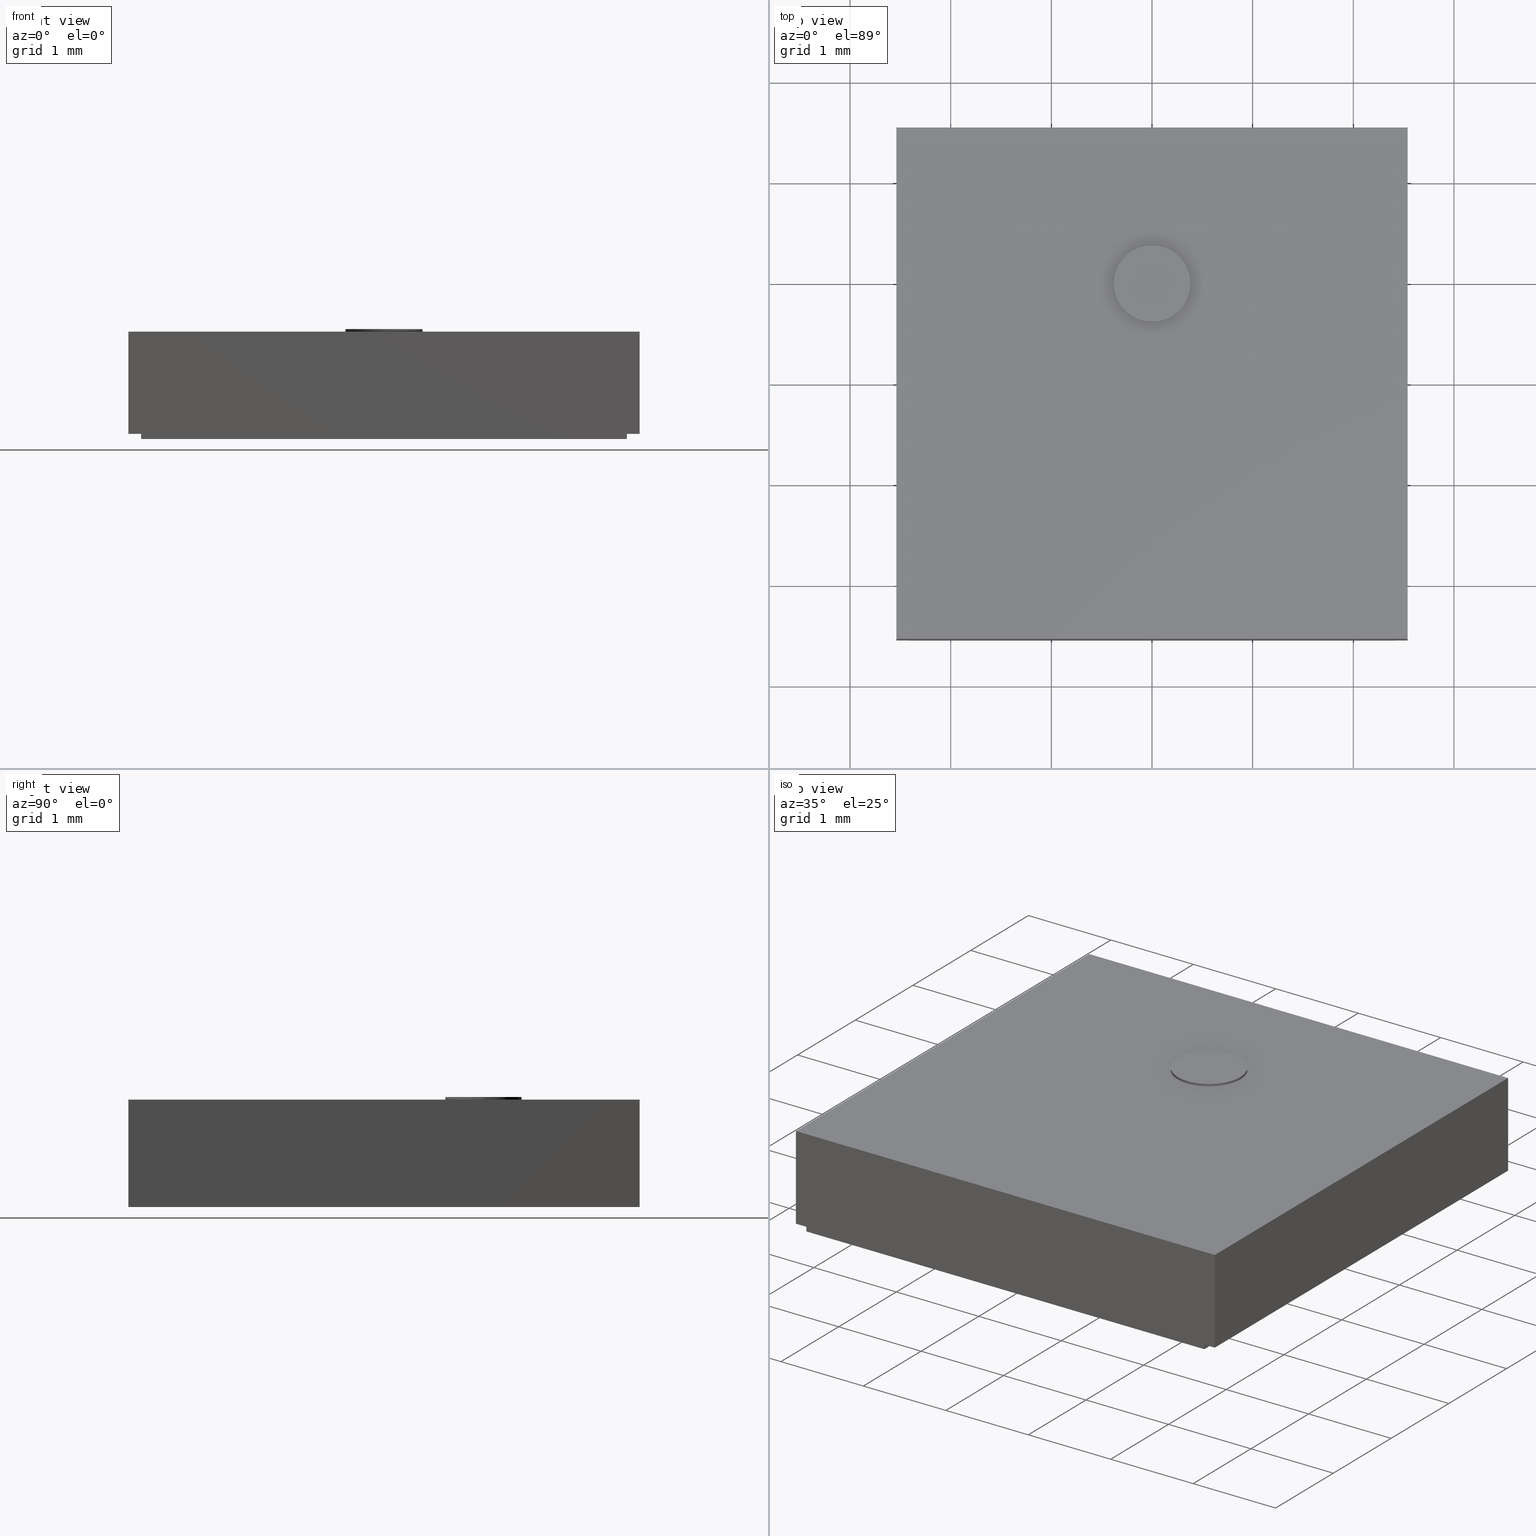
[diagram: canonical four-view strip — front | top / right | iso, engineering-drawing reading convention]
A machine part, canonical four-view strip (front | top / right | iso — engineering-drawing reading convention). The complete STEP part file that produces these views, byte-faithful:
ISO-10303-21;
HEADER;
FILE_DESCRIPTION (( 'STEP AP203' ),
    '1' );
FILE_NAME ('C100N50Z4.STEP',
    '2025-04-22T14:02:22',
    ( '' ),
    ( '' ),
    'SwSTEP 2.0',
    'SolidWorks 2023',
    '' );
FILE_SCHEMA (( 'CONFIG_CONTROL_DESIGN' ));
ENDSEC;

DATA;
#1 = ORIENTED_EDGE ( 'NONE', *, *, #312, .F. ) ;
#2 = LINE ( 'NONE', #747, #679 ) ;
#3 =( NAMED_UNIT ( * ) PLANE_ANGLE_UNIT ( ) SI_UNIT ( $, .RADIAN. ) );
#4 = CARTESIAN_POINT ( 'NONE',  ( 0.02500000000001989867, 0.1000000061611885371, 0.000000000000000000 ) ) ;
#5 = VERTEX_POINT ( 'NONE', #238 ) ;
#6 = DIRECTION ( 'NONE',  ( 0.000000000000000000, 0.000000000000000000, 1.000000000000000000 ) ) ;
#7 = EDGE_CURVE ( 'NONE', #69, #542, #310, .T. ) ;
#8 = PLANE ( 'NONE',  #370 ) ;
#9 = CARTESIAN_POINT ( 'NONE',  ( 0.000000000000000000, -0.1000000000000014211, 0.002000000000000000042 ) ) ;
#10 = ORIENTED_EDGE ( 'NONE', *, *, #77, .T. ) ;
#11 = DIRECTION ( 'NONE',  ( -0.000000000000000000, -0.000000000000000000, -1.000000000000000000 ) ) ;
#12 = CARTESIAN_POINT ( 'NONE',  ( -0.09999999999999430178, 0.1000000000000014211, 0.04099999999999999478 ) ) ;
#13 = ORIENTED_EDGE ( 'NONE', *, *, #715, .F. ) ;
#14 = CARTESIAN_POINT ( 'NONE',  ( -0.02499999999999147349, 0.09999999383881073844, 0.002000000000000000042 ) ) ;
#15 = CC_DESIGN_PERSON_AND_ORGANIZATION_ASSIGNMENT ( #662, #300, ( #425 ) ) ;
#16 = LINE ( 'NONE', #206, #704 ) ;
#17 = EDGE_CURVE ( 'NONE', #477, #714, #364, .T. ) ;
#18 = EDGE_LOOP ( 'NONE', ( #218, #544, #453, #378 ) ) ;
#19 = CARTESIAN_POINT ( 'NONE',  ( 0.02500000000001989867, 0.1000000061611885371, 0.002000000000000000042 ) ) ;
#20 = CARTESIAN_POINT ( 'NONE',  ( 0.09499999999999889089, 0.09874999999997412237, 0.002000000000000000042 ) ) ;
#21 = LINE ( 'NONE', #687, #104 ) ;
#22 = VECTOR ( 'NONE', #163, 39.37007874015748143 ) ;
#23 = FACE_OUTER_BOUND ( 'NONE', #575, .T. ) ;
#24 = LINE ( 'NONE', #14, #426 ) ;
#25 = AXIS2_PLACEMENT_3D ( 'NONE', #409, #647, #101 ) ;
#26 = CARTESIAN_POINT ( 'NONE',  ( -0.04499999999968905956, 0.05500000002084703965, 0.000000000000000000 ) ) ;
#27 = ADVANCED_FACE ( 'NONE', ( #482 ), #368, .F. ) ;
#28 = ORIENTED_EDGE ( 'NONE', *, *, #735, .F. ) ;
#29 = CARTESIAN_POINT ( 'NONE',  ( 0.02500000000001989867, 0.1000000061611885371, 0.000000000000000000 ) ) ;
#30 = PLANE ( 'NONE',  #62 ) ;
#31 = APPROVAL_STATUS ( 'not_yet_approved' ) ;
#32 = APPROVAL_PERSON_ORGANIZATION ( #116, #75, #418 ) ;
#33 = LINE ( 'NONE', #153, #751 ) ;
#34 = DIRECTION ( 'NONE',  ( -0.000000000000000000, -0.000000000000000000, -1.000000000000000000 ) ) ;
#35 = ORIENTED_EDGE ( 'NONE', *, *, #56, .T. ) ;
#36 = DIRECTION ( 'NONE',  ( -1.000000000000000000, 0.000000000000000000, 0.000000000000000000 ) ) ;
#37 = VECTOR ( 'NONE', #689, 39.37007874015748143 ) ;
#38 = VECTOR ( 'NONE', #143, 39.37007874015748143 ) ;
#39 = ADVANCED_FACE ( 'NONE', ( #726 ), #190, .F. ) ;
#40 = CARTESIAN_POINT ( 'NONE',  ( 2.842170943040400743E-13, 0.03889311473933076968, 0.04199999999999999567 ) ) ;
#41 = ORIENTED_EDGE ( 'NONE', *, *, #533, .T. ) ;
#42 = CARTESIAN_POINT ( 'NONE',  ( 0.04500000000031433717, 0.09874999999997413624, 0.002000000000000000042 ) ) ;
#43 = EDGE_LOOP ( 'NONE', ( #445, #503, #173, #541 ) ) ;
#44 = DIRECTION ( 'NONE',  ( -0.9999999999999524825, -3.080605995648821658E-07, 0.000000000000000000 ) ) ;
#45 = ORIENTED_EDGE ( 'NONE', *, *, #545, .F. ) ;
#46 = LINE ( 'NONE', #540, #260 ) ;
#47 = CC_DESIGN_PERSON_AND_ORGANIZATION_ASSIGNMENT ( #535, #242, ( #425 ) ) ;
#48 = CYLINDRICAL_SURFACE ( 'NONE', #712, 0.004999999999981952908 ) ;
#49 = ORIENTED_EDGE ( 'NONE', *, *, #327, .T. ) ;
#50 = EDGE_CURVE ( 'NONE', #154, #580, #598, .T. ) ;
#51 = VERTEX_POINT ( 'NONE', #786 ) ;
#52 = DIRECTION ( 'NONE',  ( -1.000000000000000000, 0.000000000000000000, 0.000000000000000000 ) ) ;
#53 = DATE_TIME_ROLE ( 'creation_date' ) ;
#54 = ORIENTED_EDGE ( 'NONE', *, *, #446, .F. ) ;
#55 = APPROVAL_PERSON_ORGANIZATION ( #144, #650, #339 ) ;
#56 = EDGE_CURVE ( 'NONE', #607, #537, #64, .T. ) ;
#57 = VECTOR ( 'NONE', #412, 39.37007874015748143 ) ;
#58 = PERSON_AND_ORGANIZATION_ROLE ( 'classification_officer' ) ;
#59 = CARTESIAN_POINT ( 'NONE',  ( 0.09499999999999889089, 0.09874999999997412237, 0.000000000000000000 ) ) ;
#60 = VECTOR ( 'NONE', #345, 39.37007874015748143 ) ;
#61 = LINE ( 'NONE', #587, #746 ) ;
#62 = AXIS2_PLACEMENT_3D ( 'NONE', #110, #430, #44 ) ;
#63 = ORIENTED_EDGE ( 'NONE', *, *, #533, .F. ) ;
#64 = LINE ( 'NONE', #308, #705 ) ;
#65 = DIRECTION ( 'NONE',  ( -0.000000000000000000, -0.000000000000000000, -1.000000000000000000 ) ) ;
#66 = ORIENTED_EDGE ( 'NONE', *, *, #692, .T. ) ;
#67 = EDGE_LOOP ( 'NONE', ( #313, #133, #676, #586 ) ) ;
#68 = EDGE_CURVE ( 'NONE', #322, #607, #2, .T. ) ;
#69 = VERTEX_POINT ( 'NONE', #331 ) ;
#70 = DIRECTION ( 'NONE',  ( -1.000000000000000000, 0.000000000000000000, 0.000000000000000000 ) ) ;
#71 = ORIENTED_EDGE ( 'NONE', *, *, #281, .T. ) ;
#72 = ORIENTED_EDGE ( 'NONE', *, *, #198, .F. ) ;
#73 = CARTESIAN_POINT ( 'NONE',  ( 2.842170943040400743E-13, 0.03889311473933076968, 0.04300000000000000350 ) ) ;
#74 = EDGE_LOOP ( 'NONE', ( #489, #413, #492, #72, #28, #632 ) ) ;
#75 = APPROVAL ( #785, 'UNSPECIFIED' ) ;
#76 = ORIENTED_EDGE ( 'NONE', *, *, #740, .F. ) ;
#77 = EDGE_CURVE ( 'NONE', #342, #154, #259, .T. ) ;
#78 = CARTESIAN_POINT ( 'NONE',  ( -0.02499999999999147696, 0.07999998769846426716, 0.002000000000000000042 ) ) ;
#79 = ORIENTED_EDGE ( 'NONE', *, *, #556, .T. ) ;
#80 = LINE ( 'NONE', #701, #563 ) ;
#81 = AXIS2_PLACEMENT_3D ( 'NONE', #501, #552, #326 ) ;
#82 = AXIS2_PLACEMENT_3D ( 'NONE', #447, #509, #753 ) ;
#83 = PLANE ( 'NONE',  #323 ) ;
#84 = DIRECTION ( 'NONE',  ( 0.9999999999999524825, 3.080605995648821658E-07, 0.000000000000000000 ) ) ;
#85 = VERTEX_POINT ( 'NONE', #214 ) ;
#86 = DIRECTION ( 'NONE',  ( -0.000000000000000000, -0.000000000000000000, -1.000000000000000000 ) ) ;
#87 = ADVANCED_FACE ( 'NONE', ( #462 ), #207, .T. ) ;
#88 = DIRECTION ( 'NONE',  ( -1.000000000000000000, 0.000000000000000000, 0.000000000000000000 ) ) ;
#89 = VECTOR ( 'NONE', #766, 39.37007874015748143 ) ;
#90 = CARTESIAN_POINT ( 'NONE',  ( -0.09499999999999886313, 0.09875000000001676881, 0.002000000000000000042 ) ) ;
#91 = EDGE_CURVE ( 'NONE', #183, #580, #392, .T. ) ;
#92 = DIRECTION ( 'NONE',  ( 1.000000000000000000, 0.000000000000000000, 0.000000000000000000 ) ) ;
#93 = CARTESIAN_POINT ( 'NONE',  ( 0.04500000000031433717, 0.09874999999997413624, 0.002000000000000000042 ) ) ;
#94 = DIRECTION ( 'NONE',  ( 0.000000000000000000, 0.000000000000000000, 1.000000000000000000 ) ) ;
#95 = CYLINDRICAL_SURFACE ( 'NONE', #505, 0.01499999999999999944 ) ;
#96 = ORIENTED_EDGE ( 'NONE', *, *, #119, .T. ) ;
#97 = FACE_OUTER_BOUND ( 'NONE', #614, .T. ) ;
#98 = LOCAL_TIME ( 10, 2, 22.00000000000000000, #234 ) ;
#99 = EDGE_LOOP ( 'NONE', ( #372, #608, #516, #35, #319, #610, #440, #415 ) ) ;
#100 = EDGE_CURVE ( 'NONE', #580, #714, #572, .T. ) ;
#101 = DIRECTION ( 'NONE',  ( -0.000000000000000000, 0.000000000000000000, -1.000000000000000000 ) ) ;
#102 = ORIENTED_EDGE ( 'NONE', *, *, #291, .F. ) ;
#103 = FACE_OUTER_BOUND ( 'NONE', #18, .T. ) ;
#104 = VECTOR ( 'NONE', #455, 39.37007874015748143 ) ;
#105 = DIRECTION ( 'NONE',  ( -0.000000000000000000, -1.000000000000000000, -0.000000000000000000 ) ) ;
#106 = ORIENTED_EDGE ( 'NONE', *, *, #461, .T. ) ;
#107 = DIRECTION ( 'NONE',  ( 1.000000000000000000, 0.000000000000000000, 0.000000000000000000 ) ) ;
#108 = APPROVAL_ROLE ( '' ) ;
#109 = EDGE_CURVE ( 'NONE', #675, #137, #80, .T. ) ;
#110 = CARTESIAN_POINT ( 'NONE',  ( -0.01999999999999602096, 0.07499998769844751223, 0.002000000000000000042 ) ) ;
#111 = LINE ( 'NONE', #42, #636 ) ;
#112 = ORIENTED_EDGE ( 'NONE', *, *, #281, .F. ) ;
#113 = EDGE_CURVE ( 'NONE', #606, #375, #24, .T. ) ;
#114 = PLANE ( 'NONE',  #361 ) ;
#115 = VECTOR ( 'NONE', #187, 39.37007874015748143 ) ;
#116 = PERSON_AND_ORGANIZATION ( #298, #780 ) ;
#117 = ORIENTED_EDGE ( 'NONE', *, *, #327, .F. ) ;
#118 = DIRECTION ( 'NONE',  ( 0.000000000000000000, 0.000000000000000000, 1.000000000000000000 ) ) ;
#119 = EDGE_CURVE ( 'NONE', #606, #671, #21, .T. ) ;
#120 = CARTESIAN_POINT ( 'NONE',  ( 0.02500000000001990214, 0.08000000002085344564, 0.002000000000000000042 ) ) ;
#121 = AXIS2_PLACEMENT_3D ( 'NONE', #464, #405, #654 ) ;
#122 = ORIENTED_EDGE ( 'NONE', *, *, #374, .F. ) ;
#123 = ORIENTED_EDGE ( 'NONE', *, *, #692, .F. ) ;
#124 = LINE ( 'NONE', #201, #663 ) ;
#125 = ORIENTED_EDGE ( 'NONE', *, *, #674, .F. ) ;
#126 = VERTEX_POINT ( 'NONE', #26 ) ;
#127 = CARTESIAN_POINT ( 'NONE',  ( 0.09999999999999430178, -0.1000000000000014211, 0.002000000000000000042 ) ) ;
#128 = CARTESIAN_POINT ( 'NONE',  ( -0.01999999999999602096, 0.07499998769844751223, 0.002000000000000000042 ) ) ;
#129 = ORIENTED_EDGE ( 'NONE', *, *, #340, .T. ) ;
#130 = ADVANCED_FACE ( 'NONE', ( #691 ), #626, .F. ) ;
#131 = EDGE_LOOP ( 'NONE', ( #750, #390, #567, #649 ) ) ;
#132 = CARTESIAN_POINT ( 'NONE',  ( 0.01500000000028421654, 0.03889311473933076968, 0.04199999999999999567 ) ) ;
#133 = ORIENTED_EDGE ( 'NONE', *, *, #578, .F. ) ;
#134 = PLANE ( 'NONE',  #82 ) ;
#135 = ADVANCED_FACE ( 'NONE', ( #333 ), #134, .T. ) ;
#136 = DIRECTION ( 'NONE',  ( -0.000000000000000000, -0.000000000000000000, -1.000000000000000000 ) ) ;
#137 = VERTEX_POINT ( 'NONE', #270 ) ;
#138 = DIRECTION ( 'NONE',  ( 1.000000000000000000, 0.000000000000000000, 0.000000000000000000 ) ) ;
#139 = VECTOR ( 'NONE', #548, 39.37007874015748143 ) ;
#140 = LOCAL_TIME ( 10, 2, 22.00000000000000000, #602 ) ;
#141 = CALENDAR_DATE ( 2025, 22, 4 ) ;
#142 = CARTESIAN_POINT ( 'NONE',  ( 0.02500000000001989867, 0.08000000002085344564, 0.002000000000000000042 ) ) ;
#143 = DIRECTION ( 'NONE',  ( -0.000000000000000000, 1.000000000000000000, -0.000000000000000000 ) ) ;
#144 = PERSON_AND_ORGANIZATION ( #298, #780 ) ;
#145 = LINE ( 'NONE', #693, #779 ) ;
#146 = EDGE_CURVE ( 'NONE', #443, #773, #498, .T. ) ;
#147 = ORIENTED_EDGE ( 'NONE', *, *, #515, .T. ) ;
#148 = CARTESIAN_POINT ( 'NONE',  ( -0.04499999999968905956, 0.09875000000001676881, 0.002000000000000000042 ) ) ;
#149 = LINE ( 'NONE', #398, #525 ) ;
#150 = CARTESIAN_POINT ( 'NONE',  ( 0.000000000000000000, 0.1000000000000014211, 0.04099999999999999478 ) ) ;
#151 = MECHANICAL_CONTEXT ( 'NONE', #502, 'mechanical' ) ;
#152 = PRODUCT_DEFINITION_SHAPE ( 'NONE', 'NONE',  #434 ) ;
#153 = CARTESIAN_POINT ( 'NONE',  ( 0.000000000000000000, 0.1000000000000014211, 0.002000000000000000042 ) ) ;
#154 = VERTEX_POINT ( 'NONE', #512 ) ;
#155 = CC_DESIGN_APPROVAL ( #650, ( #434 ) ) ;
#156 = CARTESIAN_POINT ( 'NONE',  ( 0.09999999999999430178, -0.1000000000000014211, 0.04199999999999999567 ) ) ;
#157 = ADVANCED_FACE ( 'NONE', ( #268 ), #763, .T. ) ;
#158 = DIRECTION ( 'NONE',  ( -1.000000000000000000, 0.000000000000000000, 0.000000000000000000 ) ) ;
#159 = VECTOR ( 'NONE', #517, 39.37007874015748143 ) ;
#160 = PLANE ( 'NONE',  #267 ) ;
#161 = AXIS2_PLACEMENT_3D ( 'NONE', #351, #94, #227 ) ;
#162 = CARTESIAN_POINT ( 'NONE',  ( -0.01499999999971578409, 0.03889311473933076968, 0.04300000000000000350 ) ) ;
#163 = DIRECTION ( 'NONE',  ( -0.000000000000000000, -0.000000000000000000, -1.000000000000000000 ) ) ;
#164 = VERTEX_POINT ( 'NONE', #320 ) ;
#165 = EDGE_CURVE ( 'NONE', #375, #51, #559, .T. ) ;
#166 = VECTOR ( 'NONE', #11, 39.37007874015748143 ) ;
#167 = ORIENTED_EDGE ( 'NONE', *, *, #545, .T. ) ;
#168 = LINE ( 'NONE', #639, #759 ) ;
#169 = LOCAL_TIME ( 10, 2, 22.00000000000000000, #272 ) ;
#170 = CARTESIAN_POINT ( 'NONE',  ( -0.09999999999999430178, 0.1000000000000014211, 0.002000000000000000042 ) ) ;
#171 = EDGE_CURVE ( 'NONE', #661, #85, #697, .T. ) ;
#172 = VERTEX_POINT ( 'NONE', #19 ) ;
#173 = ORIENTED_EDGE ( 'NONE', *, *, #706, .F. ) ;
#174 = CARTESIAN_POINT ( 'NONE',  ( 0.02000000000002444267, 0.07500000002087149620, 0.002000000000000000042 ) ) ;
#175 = VERTEX_POINT ( 'NONE', #395 ) ;
#176 = CALENDAR_DATE ( 2025, 22, 4 ) ;
#177 = CARTESIAN_POINT ( 'NONE',  ( 0.04500000000031433717, 0.05500000002084703965, 0.002000000000000000042 ) ) ;
#178 = CARTESIAN_POINT ( 'NONE',  ( -0.02499999999999147349, 0.09999999383881073844, 0.002000000000000000042 ) ) ;
#179 = CIRCLE ( 'NONE', #357, 0.01499999999999999944 ) ;
#180 = ORIENTED_EDGE ( 'NONE', *, *, #515, .F. ) ;
#181 = LENGTH_MEASURE_WITH_UNIT ( LENGTH_MEASURE( 0.02539999999999999897 ), #494 );
#182 = DIRECTION ( 'NONE',  ( -0.000000000000000000, -0.000000000000000000, -1.000000000000000000 ) ) ;
#183 = VERTEX_POINT ( 'NONE', #383 ) ;
#184 = PERSON_AND_ORGANIZATION ( #298, #780 ) ;
#185 = ORIENTED_EDGE ( 'NONE', *, *, #68, .T. ) ;
#186 =( NAMED_UNIT ( * ) SI_UNIT ( $, .STERADIAN. ) SOLID_ANGLE_UNIT ( ) );
#187 = DIRECTION ( 'NONE',  ( -0.000000000000000000, -0.000000000000000000, -1.000000000000000000 ) ) ;
#188 = CIRCLE ( 'NONE', #365, 0.01499999999999999944 ) ;
#189 = ORIENTED_EDGE ( 'NONE', *, *, #539, .T. ) ;
#190 = PLANE ( 'NONE',  #258 ) ;
#191 = CARTESIAN_POINT ( 'NONE',  ( 2.842170943040400743E-13, 0.03889311473933076968, 0.04300000000000000350 ) ) ;
#192 = EDGE_CURVE ( 'NONE', #172, #443, #325, .T. ) ;
#193 = ORIENTED_EDGE ( 'NONE', *, *, #50, .T. ) ;
#194 = DIRECTION ( 'NONE',  ( 1.000000000000000000, 0.000000000000000000, -0.000000000000000000 ) ) ;
#195 = FACE_OUTER_BOUND ( 'NONE', #683, .T. ) ;
#196 = CARTESIAN_POINT ( 'NONE',  ( -0.02499999999999147349, 0.09999999383881073844, 0.000000000000000000 ) ) ;
#197 = ORIENTED_EDGE ( 'NONE', *, *, #171, .T. ) ;
#198 = EDGE_CURVE ( 'NONE', #164, #493, #388, .T. ) ;
#199 = CARTESIAN_POINT ( 'NONE',  ( 0.04500000000031433717, 0.09874999999997413624, 0.000000000000000000 ) ) ;
#200 = AXIS2_PLACEMENT_3D ( 'NONE', #284, #527, #454 ) ;
#201 = CARTESIAN_POINT ( 'NONE',  ( 0.09999999999999430178, -0.1000000000000014211, 0.04099999999999999478 ) ) ;
#202 = EDGE_LOOP ( 'NONE', ( #497, #755, #353, #185 ) ) ;
#203 = VECTOR ( 'NONE', #261, 39.37007874015748143 ) ;
#204 = DIRECTION ( 'NONE',  ( 0.000000000000000000, 1.000000000000000000, 0.000000000000000000 ) ) ;
#205 = PERSON_AND_ORGANIZATION ( #298, #780 ) ;
#206 = CARTESIAN_POINT ( 'NONE',  ( 0.000000000000000000, 0.1000000000000014211, 0.04199999999999999567 ) ) ;
#207 = PLANE ( 'NONE',  #335 ) ;
#208 = VECTOR ( 'NONE', #138, 39.37007874015748143 ) ;
#209 = EDGE_CURVE ( 'NONE', #439, #241, #168, .T. ) ;
#210 = CARTESIAN_POINT ( 'NONE',  ( -0.09999999999999430178, -0.1000000000000014211, 0.04199999999999999567 ) ) ;
#211 = CARTESIAN_POINT ( 'NONE',  ( 0.09499999999999886313, -0.1000000000000014211, 0.002000000000000000042 ) ) ;
#212 = LINE ( 'NONE', #332, #60 ) ;
#213 = ORIENTED_EDGE ( 'NONE', *, *, #340, .F. ) ;
#214 = CARTESIAN_POINT ( 'NONE',  ( -0.04499999999968905956, 0.09875000000001676881, 0.002000000000000000042 ) ) ;
#215 = ORIENTED_EDGE ( 'NONE', *, *, #665, .F. ) ;
#216 = CARTESIAN_POINT ( 'NONE',  ( -0.01999999999998536629, 0.07999998769845362290, 0.002000000000000000042 ) ) ;
#217 = DIRECTION ( 'NONE',  ( 0.000000000000000000, 0.000000000000000000, 1.000000000000000000 ) ) ;
#218 = ORIENTED_EDGE ( 'NONE', *, *, #165, .T. ) ;
#219 = DIRECTION ( 'NONE',  ( -0.000000000000000000, -0.000000000000000000, -1.000000000000000000 ) ) ;
#220 = CARTESIAN_POINT ( 'NONE',  ( 0.09499999999999889089, 0.09874999999997412237, 0.002000000000000000042 ) ) ;
#221 = ORIENTED_EDGE ( 'NONE', *, *, #725, .T. ) ;
#222 = DIRECTION ( 'NONE',  ( 1.000000000000000000, -2.134255589796767145E-16, 0.000000000000000000 ) ) ;
#223 = CARTESIAN_POINT ( 'NONE',  ( 0.09499999999999886313, -0.1000000000000014211, 0.002000000000000000042 ) ) ;
#224 = VECTOR ( 'NONE', #466, 39.37007874015748143 ) ;
#225 = EDGE_CURVE ( 'NONE', #690, #640, #411, .T. ) ;
#226 = LINE ( 'NONE', #716, #57 ) ;
#227 = DIRECTION ( 'NONE',  ( 1.000000000000000000, 0.000000000000000000, 0.000000000000000000 ) ) ;
#228 = EDGE_LOOP ( 'NONE', ( #767, #250, #125, #106 ) ) ;
#229 = EDGE_CURVE ( 'NONE', #784, #286, #775, .T. ) ;
#230 = DIRECTION ( 'NONE',  ( 1.000000000000000000, 0.000000000000000000, 0.000000000000000000 ) ) ;
#231 = CALENDAR_DATE ( 2025, 22, 4 ) ;
#232 = CARTESIAN_POINT ( 'NONE',  ( -0.09499999999999886313, -0.1000000000000014211, 0.000000000000000000 ) ) ;
#233 = ORIENTED_EDGE ( 'NONE', *, *, #225, .T. ) ;
#234 = COORDINATED_UNIVERSAL_TIME_OFFSET ( 5, 0, .BEHIND. ) ;
#235 = DIRECTION ( 'NONE',  ( 1.000000000000000000, 0.000000000000000000, 0.000000000000000000 ) ) ;
#236 = LOCAL_TIME ( 10, 2, 22.00000000000000000, #659 ) ;
#237 = ADVANCED_FACE ( 'NONE', ( #290 ), #531, .T. ) ;
#238 = CARTESIAN_POINT ( 'NONE',  ( 0.04500000000031433717, 0.05500000002084703965, 0.000000000000000000 ) ) ;
#239 = VECTOR ( 'NONE', #579, 39.37007874015748143 ) ;
#240 = CLOSED_SHELL ( 'NONE', ( #521, #87, #237, #157, #761, #135, #600, #765, #588, #611, #456, #783, #475, #652, #39, #253, #130, #561, #276, #303, #336, #682, #27 ) ) ;
#241 = VERTEX_POINT ( 'NONE', #278 ) ;
#242 = PERSON_AND_ORGANIZATION_ROLE ( 'creator' ) ;
#243 = VERTEX_POINT ( 'NONE', #472 ) ;
#244 = LINE ( 'NONE', #254, #115 ) ;
#245 = ORIENTED_EDGE ( 'NONE', *, *, #229, .F. ) ;
#246 = DIRECTION ( 'NONE',  ( 1.000000000000000000, 0.000000000000000000, 0.000000000000000000 ) ) ;
#247 = CARTESIAN_POINT ( 'NONE',  ( -0.09499999999999886313, 0.09875000000001676881, 0.000000000000000000 ) ) ;
#248 = EDGE_CURVE ( 'NONE', #51, #675, #473, .T. ) ;
#249 = CARTESIAN_POINT ( 'NONE',  ( -0.04499999999968905956, 0.05500000002084703965, 0.000000000000000000 ) ) ;
#250 = ORIENTED_EDGE ( 'NONE', *, *, #467, .F. ) ;
#251 = MANIFOLD_SOLID_BREP ( 'Combine1', #240 ) ;
#252 = ORIENTED_EDGE ( 'NONE', *, *, #229, .T. ) ;
#253 = ADVANCED_FACE ( 'NONE', ( #536 ), #410, .F. ) ;
#254 = CARTESIAN_POINT ( 'NONE',  ( 0.01500000000028421654, 0.03889311473933076968, 0.04300000000000000350 ) ) ;
#255 = ORIENTED_EDGE ( 'NONE', *, *, #50, .F. ) ;
#256 = VECTOR ( 'NONE', #136, 39.37007874015748143 ) ;
#257 = AXIS2_PLACEMENT_3D ( 'NONE', #178, #222, #363 ) ;
#258 = AXIS2_PLACEMENT_3D ( 'NONE', #177, #246, #362 ) ;
#259 = LINE ( 'NONE', #211, #324 ) ;
#260 = VECTOR ( 'NONE', #354, 39.37007874015748143 ) ;
#261 = DIRECTION ( 'NONE',  ( -1.000000000000000000, 0.000000000000000000, 0.000000000000000000 ) ) ;
#262 = ORIENTED_EDGE ( 'NONE', *, *, #593, .T. ) ;
#263 = UNCERTAINTY_MEASURE_WITH_UNIT (LENGTH_MEASURE( 1.000000000000000082E-05 ), #555, 'distance_accuracy_value', 'NONE');
#264 = DIRECTION ( 'NONE',  ( -1.000000000000000000, 3.414809992101873307E-16, -0.000000000000000000 ) ) ;
#265 = COORDINATED_UNIVERSAL_TIME_OFFSET ( 5, 0, .BEHIND. ) ;
#266 = DIRECTION ( 'NONE',  ( -1.000000000000000000, 8.590716961209433072E-17, 0.000000000000000000 ) ) ;
#267 = AXIS2_PLACEMENT_3D ( 'NONE', #644, #346, #585 ) ;
#268 = FACE_OUTER_BOUND ( 'NONE', #404, .T. ) ;
#269 = DIRECTION ( 'NONE',  ( 0.000000000000000000, 0.000000000000000000, 1.000000000000000000 ) ) ;
#270 = CARTESIAN_POINT ( 'NONE',  ( 0.02000000000002444267, 0.07500000002087149620, 0.000000000000000000 ) ) ;
#271 =( GEOMETRIC_REPRESENTATION_CONTEXT ( 3 ) GLOBAL_UNCERTAINTY_ASSIGNED_CONTEXT ( ( #263 ) ) GLOBAL_UNIT_ASSIGNED_CONTEXT ( ( #555, #3, #186 ) ) REPRESENTATION_CONTEXT ( 'NONE', 'WORKASPACE' ) );
#272 = COORDINATED_UNIVERSAL_TIME_OFFSET ( 5, 0, .BEHIND. ) ;
#273 = DIRECTION ( 'NONE',  ( 1.000000000000000000, 0.000000000000000000, 0.000000000000000000 ) ) ;
#274 = CC_DESIGN_DATE_AND_TIME_ASSIGNMENT ( #389, #53, ( #434 ) ) ;
#275 = CARTESIAN_POINT ( 'NONE',  ( 0.000000000000000000, 0.000000000000000000, 0.000000000000000000 ) ) ;
#276 = ADVANCED_FACE ( 'NONE', ( #589 ), #30, .F. ) ;
#277 = PRODUCT ( 'C100N50Z4', 'C100N50Z4', '', ( #151 ) ) ;
#278 = CARTESIAN_POINT ( 'NONE',  ( -0.09499999999999886313, -0.1000000000000014211, 0.002000000000000000042 ) ) ;
#279 = CC_DESIGN_SECURITY_CLASSIFICATION ( #352, ( #425 ) ) ;
#280 = FACE_OUTER_BOUND ( 'NONE', #202, .T. ) ;
#281 = EDGE_CURVE ( 'NONE', #406, #175, #507, .T. ) ;
#282 = CARTESIAN_POINT ( 'NONE',  ( -0.09999999999999430178, 0.1000000000000014211, 0.04199999999999999567 ) ) ;
#283 = AXIS2_PLACEMENT_3D ( 'NONE', #73, #609, #70 ) ;
#284 = CARTESIAN_POINT ( 'NONE',  ( 0.000000000000000000, 0.000000000000000000, 0.04199999999999999567 ) ) ;
#285 = DIRECTION ( 'NONE',  ( 0.000000000000000000, 0.000000000000000000, 1.000000000000000000 ) ) ;
#286 = VERTEX_POINT ( 'NONE', #707 ) ;
#287 = PLANE ( 'NONE',  #257 ) ;
#288 = ORIENTED_EDGE ( 'NONE', *, *, #384, .T. ) ;
#289 = APPROVAL_DATE_TIME ( #307, #408 ) ;
#290 = FACE_OUTER_BOUND ( 'NONE', #131, .T. ) ;
#291 = EDGE_CURVE ( 'NONE', #286, #154, #719, .T. ) ;
#292 = CARTESIAN_POINT ( 'NONE',  ( -0.09499999999999886313, 0.09875000000001676881, 0.000000000000000000 ) ) ;
#293 = EDGE_LOOP ( 'NONE', ( #189, #565, #628, #733 ) ) ;
#294 = PERSON_AND_ORGANIZATION ( #298, #780 ) ;
#295 = CARTESIAN_POINT ( 'NONE',  ( -0.01999999999998536629, 0.07999998769845362290, 0.000000000000000000 ) ) ;
#296 = ORIENTED_EDGE ( 'NONE', *, *, #198, .T. ) ;
#297 = DIRECTION ( 'NONE',  ( 0.000000000000000000, 0.000000000000000000, 1.000000000000000000 ) ) ;
#298 = PERSON ( 'UNSPECIFIED', 'UNSPECIFIED', 'UNSPECIFIED', ('UNSPECIFIED'), ('UNSPECIFIED'), ('UNSPECIFIED') ) ;
#299 = AXIS2_PLACEMENT_3D ( 'NONE', #93, #337, #576 ) ;
#300 = PERSON_AND_ORGANIZATION_ROLE ( 'design_supplier' ) ;
#301 = VECTOR ( 'NONE', #530, 39.37007874015748143 ) ;
#302 = CC_DESIGN_DATE_AND_TIME_ASSIGNMENT ( #722, #481, ( #352 ) ) ;
#303 = ADVANCED_FACE ( 'NONE', ( #97 ), #48, .T. ) ;
#304 = EDGE_LOOP ( 'NONE', ( #233, #601, #724, #373, #348, #49, #582, #421, #79, #197, #655, #424, #490, #41, #167, #96, #686, #288 ) ) ;
#305 = DIRECTION ( 'NONE',  ( 8.590716961209431840E-17, 1.000000000000000000, -0.000000000000000000 ) ) ;
#306 = VERTEX_POINT ( 'NONE', #523 ) ;
#307 = DATE_AND_TIME ( #432, #140 ) ;
#308 = CARTESIAN_POINT ( 'NONE',  ( -0.09999999999999430178, -0.1000000000000014211, 0.04099999999999999478 ) ) ;
#309 = DIRECTION ( 'NONE',  ( 1.000000000000000000, 0.000000000000000000, 0.000000000000000000 ) ) ;
#310 = CIRCLE ( 'NONE', #596, 0.01499999999999999944 ) ;
#311 = ORIENTED_EDGE ( 'NONE', *, *, #625, .F. ) ;
#312 = EDGE_CURVE ( 'NONE', #640, #172, #577, .T. ) ;
#313 = ORIENTED_EDGE ( 'NONE', *, *, #740, .T. ) ;
#314 = LINE ( 'NONE', #9, #203 ) ;
#315 = EDGE_LOOP ( 'NONE', ( #615, #529 ) ) ;
#316 = VERTEX_POINT ( 'NONE', #156 ) ;
#317 = EDGE_CURVE ( 'NONE', #85, #306, #528, .T. ) ;
#318 = LINE ( 'NONE', #444, #139 ) ;
#319 = ORIENTED_EDGE ( 'NONE', *, *, #394, .F. ) ;
#320 = CARTESIAN_POINT ( 'NONE',  ( 0.02500000000001990214, 0.08000000002085344564, 0.000000000000000000 ) ) ;
#321 = DIRECTION ( 'NONE',  ( -8.590716961209433072E-17, -1.000000000000000000, 0.000000000000000000 ) ) ;
#322 = VERTEX_POINT ( 'NONE', #282 ) ;
#323 = AXIS2_PLACEMENT_3D ( 'NONE', #20, #266, #321 ) ;
#324 = VECTOR ( 'NONE', #619, 39.37007874015748143 ) ;
#325 = LINE ( 'NONE', #451, #208 ) ;
#326 = DIRECTION ( 'NONE',  ( 0.000000000000000000, -0.000000000000000000, -1.000000000000000000 ) ) ;
#327 = EDGE_CURVE ( 'NONE', #342, #183, #770, .T. ) ;
#328 = CARTESIAN_POINT ( 'NONE',  ( 0.02500000000001990214, 0.08000000002085344564, 0.000000000000000000 ) ) ;
#329 = ORIENTED_EDGE ( 'NONE', *, *, #480, .T. ) ;
#330 = LINE ( 'NONE', #708, #564 ) ;
#331 = CARTESIAN_POINT ( 'NONE',  ( 0.01500000000028421654, 0.03889311473933076968, 0.04300000000000000350 ) ) ;
#332 = CARTESIAN_POINT ( 'NONE',  ( -0.04499999999968905956, 0.05500000002084703965, 0.002000000000000000042 ) ) ;
#333 = FACE_OUTER_BOUND ( 'NONE', #99, .T. ) ;
#334 = VECTOR ( 'NONE', #739, 39.37007874015748143 ) ;
#335 = AXIS2_PLACEMENT_3D ( 'NONE', #760, #624, #88 ) ;
#336 = ADVANCED_FACE ( 'NONE', ( #709 ), #160, .F. ) ;
#337 = DIRECTION ( 'NONE',  ( -3.414809992101873307E-16, -1.000000000000000000, 0.000000000000000000 ) ) ;
#338 = DIRECTION ( 'NONE',  ( -1.000000000000000000, 0.000000000000000000, 0.000000000000000000 ) ) ;
#339 = APPROVAL_ROLE ( '' ) ;
#340 = EDGE_CURVE ( 'NONE', #175, #406, #188, .T. ) ;
#341 = LINE ( 'NONE', #463, #239 ) ;
#342 = VERTEX_POINT ( 'NONE', #223 ) ;
#343 = APPLICATION_CONTEXT ( 'configuration controlled 3d designs of mechanical parts and assemblies' ) ;
#344 = DIRECTION ( 'NONE',  ( 1.000000000000000000, 0.000000000000000000, 0.000000000000000000 ) ) ;
#345 = DIRECTION ( 'NONE',  ( -1.000000000000000000, -0.000000000000000000, -0.000000000000000000 ) ) ;
#346 = DIRECTION ( 'NONE',  ( -1.000000000000000000, -2.134255589797980265E-16, 0.000000000000000000 ) ) ;
#347 = CARTESIAN_POINT ( 'NONE',  ( 0.04500000000031433717, 0.05500000002084703965, 0.002000000000000000042 ) ) ;
#348 = ORIENTED_EDGE ( 'NONE', *, *, #634, .T. ) ;
#349 = DIRECTION ( 'NONE',  ( 0.000000000000000000, 0.000000000000000000, 1.000000000000000000 ) ) ;
#350 = CARTESIAN_POINT ( 'NONE',  ( -0.01999999999999602096, 0.07499998769844751223, 0.002000000000000000042 ) ) ;
#351 = CARTESIAN_POINT ( 'NONE',  ( 2.842170943040400743E-13, 0.03889311473933076968, 0.04199999999999999567 ) ) ;
#352 = SECURITY_CLASSIFICATION ( '', '', #732 ) ;
#353 = ORIENTED_EDGE ( 'NONE', *, *, #419, .T. ) ;
#354 = DIRECTION ( 'NONE',  ( 1.000000000000000000, 0.000000000000000000, 0.000000000000000000 ) ) ;
#355 = EDGE_LOOP ( 'NONE', ( #442, #215, #681, #381 ) ) ;
#356 = EDGE_CURVE ( 'NONE', #558, #443, #470, .T. ) ;
#357 = AXIS2_PLACEMENT_3D ( 'NONE', #191, #366, #309 ) ;
#358 = VECTOR ( 'NONE', #599, 39.37007874015748143 ) ;
#359 = VECTOR ( 'NONE', #629, 39.37007874015748143 ) ;
#360 = APPROVAL_DATE_TIME ( #422, #75 ) ;
#361 = AXIS2_PLACEMENT_3D ( 'NONE', #479, #52, #297 ) ;
#362 = DIRECTION ( 'NONE',  ( 0.000000000000000000, 0.000000000000000000, -1.000000000000000000 ) ) ;
#363 = DIRECTION ( 'NONE',  ( 2.134255589796767145E-16, 1.000000000000000000, 0.000000000000000000 ) ) ;
#364 = LINE ( 'NONE', #743, #166 ) ;
#365 = AXIS2_PLACEMENT_3D ( 'NONE', #40, #285, #772 ) ;
#366 = DIRECTION ( 'NONE',  ( 0.000000000000000000, 0.000000000000000000, 1.000000000000000000 ) ) ;
#367 = ORIENTED_EDGE ( 'NONE', *, *, #700, .F. ) ;
#368 = PLANE ( 'NONE',  #371 ) ;
#369 = PLANE ( 'NONE',  #81 ) ;
#370 = AXIS2_PLACEMENT_3D ( 'NONE', #448, #730, #436 ) ;
#371 = AXIS2_PLACEMENT_3D ( 'NONE', #604, #6, #194 ) ;
#372 = ORIENTED_EDGE ( 'NONE', *, *, #634, .F. ) ;
#373 = ORIENTED_EDGE ( 'NONE', *, *, #146, .T. ) ;
#374 = EDGE_CURVE ( 'NONE', #322, #731, #568, .T. ) ;
#375 = VERTEX_POINT ( 'NONE', #196 ) ;
#376 = DIRECTION ( 'NONE',  ( -0.000000000000000000, -0.000000000000000000, -1.000000000000000000 ) ) ;
#377 = EDGE_LOOP ( 'NONE', ( #296, #180, #1, #329 ) ) ;
#378 = ORIENTED_EDGE ( 'NONE', *, *, #113, .T. ) ;
#379 = DIRECTION ( 'NONE',  ( 1.000000000000000000, 0.000000000000000000, -0.000000000000000000 ) ) ;
#380 = DIRECTION ( 'NONE',  ( -0.000000000000000000, -0.000000000000000000, -1.000000000000000000 ) ) ;
#381 = ORIENTED_EDGE ( 'NONE', *, *, #467, .T. ) ;
#382 = CC_DESIGN_PERSON_AND_ORGANIZATION_ASSIGNMENT ( #205, #452, ( #434 ) ) ;
#383 = CARTESIAN_POINT ( 'NONE',  ( 0.09499999999999889089, 0.09874999999997412237, 0.002000000000000000042 ) ) ;
#384 = EDGE_CURVE ( 'NONE', #738, #690, #744, .T. ) ;
#385 = FACE_OUTER_BOUND ( 'NONE', #550, .T. ) ;
#386 = VECTOR ( 'NONE', #680, 39.37007874015748143 ) ;
#387 = AXIS2_PLACEMENT_3D ( 'NONE', #275, #518, #92 ) ;
#388 = LINE ( 'NONE', #328, #648 ) ;
#389 = DATE_AND_TIME ( #141, #169 ) ;
#390 = ORIENTED_EDGE ( 'NONE', *, *, #356, .F. ) ;
#391 = PLANE ( 'NONE',  #299 ) ;
#392 = LINE ( 'NONE', #757, #359 ) ;
#393 = DIRECTION ( 'NONE',  ( -0.000000000000000000, -0.000000000000000000, -1.000000000000000000 ) ) ;
#394 = EDGE_CURVE ( 'NONE', #241, #537, #314, .T. ) ;
#395 = CARTESIAN_POINT ( 'NONE',  ( -0.01499999999971578409, 0.03889311473933076968, 0.04199999999999999567 ) ) ;
#396 = APPLICATION_PROTOCOL_DEFINITION ( 'international standard', 'config_control_design', 1994, #502 ) ;
#397 = ORIENTED_EDGE ( 'NONE', *, *, #735, .T. ) ;
#398 = CARTESIAN_POINT ( 'NONE',  ( 0.000000000000000000, -0.1000000000000014211, 0.002000000000000000042 ) ) ;
#399 = EDGE_CURVE ( 'NONE', #316, #558, #318, .T. ) ;
#400 = DIRECTION ( 'NONE',  ( 0.000000000000000000, -0.000000000000000000, 1.000000000000000000 ) ) ;
#401 = PERSON_AND_ORGANIZATION ( #298, #780 ) ;
#402 = DIRECTION ( 'NONE',  ( -1.000000000000000000, 0.000000000000000000, 0.000000000000000000 ) ) ;
#403 = CIRCLE ( 'NONE', #500, 0.004999999999981950306 ) ;
#404 = EDGE_LOOP ( 'NONE', ( #45, #122, #484, #553, #718, #147, #262, #450 ) ) ;
#405 = DIRECTION ( 'NONE',  ( 0.000000000000000000, -1.000000000000000000, 0.000000000000000000 ) ) ;
#406 = VERTEX_POINT ( 'NONE', #132 ) ;
#407 = FACE_OUTER_BOUND ( 'NONE', #293, .T. ) ;
#408 = APPROVAL ( #427, 'UNSPECIFIED' ) ;
#409 = CARTESIAN_POINT ( 'NONE',  ( 0.09999999999999430178, 0.000000000000000000, 0.04099999999999999478 ) ) ;
#410 = PLANE ( 'NONE',  #121 ) ;
#411 = CIRCLE ( 'NONE', #720, 0.004999999999981950306 ) ;
#412 = DIRECTION ( 'NONE',  ( -0.000000000000000000, -1.000000000000000000, -0.000000000000000000 ) ) ;
#413 = ORIENTED_EDGE ( 'NONE', *, *, #165, .F. ) ;
#414 = DIRECTION ( 'NONE',  ( -0.000000000000000000, -1.000000000000000000, -0.000000000000000000 ) ) ;
#415 = ORIENTED_EDGE ( 'NONE', *, *, #77, .F. ) ;
#416 = DIRECTION ( 'NONE',  ( 0.000000000000000000, 0.000000000000000000, 1.000000000000000000 ) ) ;
#417 = ORIENTED_EDGE ( 'NONE', *, *, #480, .F. ) ;
#418 = APPROVAL_ROLE ( '' ) ;
#419 = EDGE_CURVE ( 'NONE', #558, #322, #16, .T. ) ;
#420 = CARTESIAN_POINT ( 'NONE',  ( -0.01999999999999602096, 0.07499998769844751223, 0.000000000000000000 ) ) ;
#421 = ORIENTED_EDGE ( 'NONE', *, *, #700, .T. ) ;
#422 = DATE_AND_TIME ( #176, #236 ) ;
#423 = EDGE_CURVE ( 'NONE', #5, #126, #623, .T. ) ;
#424 = ORIENTED_EDGE ( 'NONE', *, *, #209, .T. ) ;
#425 = PRODUCT_DEFINITION_FORMATION_WITH_SPECIFIED_SOURCE ( 'ANY', '', #277, .NOT_KNOWN. ) ;
#426 = VECTOR ( 'NONE', #504, 39.37007874015748143 ) ;
#427 = APPROVAL_STATUS ( 'not_yet_approved' ) ;
#428 = ORIENTED_EDGE ( 'NONE', *, *, #17, .T. ) ;
#429 = PLANE ( 'NONE',  #677 ) ;
#430 = DIRECTION ( 'NONE',  ( -3.080605995648822187E-07, 0.9999999999999525935, 0.000000000000000000 ) ) ;
#431 = EDGE_LOOP ( 'NONE', ( #213, #112 ) ) ;
#432 = CALENDAR_DATE ( 2025, 22, 4 ) ;
#433 = VECTOR ( 'NONE', #460, 39.37007874015748854 ) ;
#434 = PRODUCT_DEFINITION ( 'UNKNOWN', '', #425, #522 ) ;
#435 = ORIENTED_EDGE ( 'NONE', *, *, #725, .F. ) ;
#436 = DIRECTION ( 'NONE',  ( 0.000000000000000000, 0.000000000000000000, -1.000000000000000000 ) ) ;
#437 = EDGE_CURVE ( 'NONE', #316, #773, #124, .T. ) ;
#438 = DIRECTION ( 'NONE',  ( -0.000000000000000000, -0.000000000000000000, -1.000000000000000000 ) ) ;
#439 = VERTEX_POINT ( 'NONE', #749 ) ;
#440 = ORIENTED_EDGE ( 'NONE', *, *, #291, .T. ) ;
#441 = CARTESIAN_POINT ( 'NONE',  ( -0.09999999999999430178, 0.000000000000000000, 0.002000000000000000042 ) ) ;
#442 = ORIENTED_EDGE ( 'NONE', *, *, #109, .T. ) ;
#443 = VERTEX_POINT ( 'NONE', #685 ) ;
#444 = CARTESIAN_POINT ( 'NONE',  ( 0.09999999999999430178, 0.000000000000000000, 0.04199999999999999567 ) ) ;
#445 = ORIENTED_EDGE ( 'NONE', *, *, #100, .T. ) ;
#446 = EDGE_CURVE ( 'NONE', #542, #69, #179, .T. ) ;
#447 = CARTESIAN_POINT ( 'NONE',  ( 0.000000000000000000, -0.1000000000000014211, 0.04099999999999999478 ) ) ;
#448 = CARTESIAN_POINT ( 'NONE',  ( -0.09499999999999886313, -0.1000000000000014211, 0.002000000000000000042 ) ) ;
#449 = CARTESIAN_POINT ( 'NONE',  ( -0.01999999999999602096, 0.07499998769844751223, 0.002000000000000000042 ) ) ;
#450 = ORIENTED_EDGE ( 'NONE', *, *, #113, .F. ) ;
#451 = CARTESIAN_POINT ( 'NONE',  ( 0.000000000000000000, 0.1000000000000014211, 0.002000000000000000042 ) ) ;
#452 = PERSON_AND_ORGANIZATION_ROLE ( 'creator' ) ;
#453 = ORIENTED_EDGE ( 'NONE', *, *, #119, .F. ) ;
#454 = DIRECTION ( 'NONE',  ( 1.000000000000000000, 0.000000000000000000, -0.000000000000000000 ) ) ;
#455 = DIRECTION ( 'NONE',  ( -2.134255589796766652E-16, -1.000000000000000000, 0.000000000000000000 ) ) ;
#456 = ADVANCED_FACE ( 'NONE', ( #557 ), #369, .F. ) ;
#457 = CARTESIAN_POINT ( 'NONE',  ( -0.02499999999999147349, 0.09999999383881073844, 0.002000000000000000042 ) ) ;
#458 = DIRECTION ( 'NONE',  ( -2.134255589796766652E-16, -1.000000000000000000, 0.000000000000000000 ) ) ;
#459 = ORIENTED_EDGE ( 'NONE', *, *, #209, .F. ) ;
#460 = DIRECTION ( 'NONE',  ( -0.9999999999999696909, -2.464475559458771507E-07, 0.000000000000000000 ) ) ;
#461 = EDGE_CURVE ( 'NONE', #671, #51, #667, .T. ) ;
#462 = FACE_OUTER_BOUND ( 'NONE', #304, .T. ) ;
#463 = CARTESIAN_POINT ( 'NONE',  ( -0.04499999999968905956, 0.09875000000001676881, 0.000000000000000000 ) ) ;
#464 = CARTESIAN_POINT ( 'NONE',  ( -0.04499999999968905956, 0.05500000002084703965, 0.002000000000000000042 ) ) ;
#465 = DIRECTION ( 'NONE',  ( -1.000000000000000000, 0.000000000000000000, 0.000000000000000000 ) ) ;
#466 = DIRECTION ( 'NONE',  ( 8.590716961209431840E-17, 1.000000000000000000, -0.000000000000000000 ) ) ;
#467 = EDGE_CURVE ( 'NONE', #738, #675, #488, .T. ) ;
#468 = DIRECTION ( 'NONE',  ( -0.000000000000000000, -1.000000000000000000, -0.000000000000000000 ) ) ;
#469 = VECTOR ( 'NONE', #376, 39.37007874015748143 ) ;
#470 = LINE ( 'NONE', #713, #22 ) ;
#471 = LINE ( 'NONE', #657, #769 ) ;
#472 = CARTESIAN_POINT ( 'NONE',  ( 0.04500000000031433717, 0.05500000002084703965, 0.002000000000000000042 ) ) ;
#473 = CIRCLE ( 'NONE', #643, 0.005000000000006110668 ) ;
#474 = DIRECTION ( 'NONE',  ( -1.000000000000000000, 3.414809992101873307E-16, -0.000000000000000000 ) ) ;
#475 = ADVANCED_FACE ( 'NONE', ( #385 ), #83, .F. ) ;
#476 = DIRECTION ( 'NONE',  ( 1.000000000000000000, -0.000000000000000000, -0.000000000000000000 ) ) ;
#477 = VERTEX_POINT ( 'NONE', #508 ) ;
#478 = ORIENTED_EDGE ( 'NONE', *, *, #7, .F. ) ;
#479 = CARTESIAN_POINT ( 'NONE',  ( -0.09999999999999430178, 0.000000000000000000, 0.04099999999999999478 ) ) ;
#480 = EDGE_CURVE ( 'NONE', #640, #164, #617, .T. ) ;
#481 = DATE_TIME_ROLE ( 'classification_date' ) ;
#482 = FACE_OUTER_BOUND ( 'NONE', #74, .T. ) ;
#483 = DIMENSIONAL_EXPONENTS ( 1.000000000000000000, 0.000000000000000000, 0.000000000000000000, 0.000000000000000000, 0.000000000000000000, 0.000000000000000000, 0.000000000000000000 ) ;
#484 = ORIENTED_EDGE ( 'NONE', *, *, #419, .F. ) ;
#485 = CARTESIAN_POINT ( 'NONE',  ( -0.04499999999968905956, 0.05500000002084703965, 0.002000000000000000042 ) ) ;
#486 = ORIENTED_EDGE ( 'NONE', *, *, #100, .F. ) ;
#487 = EDGE_LOOP ( 'NONE', ( #549, #612, #435, #486, #255, #102, #245, #76 ) ) ;
#488 = LINE ( 'NONE', #449, #256 ) ;
#489 = ORIENTED_EDGE ( 'NONE', *, *, #248, .F. ) ;
#490 = ORIENTED_EDGE ( 'NONE', *, *, #394, .T. ) ;
#491 = LINE ( 'NONE', #441, #386 ) ;
#492 = ORIENTED_EDGE ( 'NONE', *, *, #593, .F. ) ;
#493 = VERTEX_POINT ( 'NONE', #4 ) ;
#494 =( LENGTH_UNIT ( ) NAMED_UNIT ( * ) SI_UNIT ( $, .METRE. ) );
#495 = CARTESIAN_POINT ( 'NONE',  ( -0.09999999999999430178, -0.1000000000000014211, 0.002000000000000000042 ) ) ;
#496 = EDGE_CURVE ( 'NONE', #69, #406, #244, .T. ) ;
#497 = ORIENTED_EDGE ( 'NONE', *, *, #752, .T. ) ;
#498 = LINE ( 'NONE', #574, #547 ) ;
#499 = AXIS2_PLACEMENT_3D ( 'NONE', #702, #269, #510 ) ;
#500 = AXIS2_PLACEMENT_3D ( 'NONE', #651, #416, #107 ) ;
#501 = CARTESIAN_POINT ( 'NONE',  ( -0.09499999999999886313, 0.09875000000001676881, 0.002000000000000000042 ) ) ;
#502 = APPLICATION_CONTEXT ( 'configuration controlled 3d designs of mechanical parts and assemblies' ) ;
#503 = ORIENTED_EDGE ( 'NONE', *, *, #17, .F. ) ;
#504 = DIRECTION ( 'NONE',  ( -0.000000000000000000, -0.000000000000000000, -1.000000000000000000 ) ) ;
#505 = AXIS2_PLACEMENT_3D ( 'NONE', #511, #219, #36 ) ;
#506 = CALENDAR_DATE ( 2025, 22, 4 ) ;
#507 = CIRCLE ( 'NONE', #161, 0.01499999999999999944 ) ;
#508 = CARTESIAN_POINT ( 'NONE',  ( 0.04500000000031433717, 0.09874999999997413624, 0.002000000000000000042 ) ) ;
#509 = DIRECTION ( 'NONE',  ( 0.000000000000000000, -1.000000000000000000, 0.000000000000000000 ) ) ;
#510 = DIRECTION ( 'NONE',  ( 1.000000000000000000, 0.000000000000000000, 0.000000000000000000 ) ) ;
#511 = CARTESIAN_POINT ( 'NONE',  ( 2.842170943040400743E-13, 0.03889311473933076968, 0.04300000000000000350 ) ) ;
#512 = CARTESIAN_POINT ( 'NONE',  ( 0.09499999999999886313, -0.1000000000000014211, 0.000000000000000000 ) ) ;
#513 = LOCAL_TIME ( 10, 2, 22.00000000000000000, #265 ) ;
#514 = DATE_AND_TIME ( #506, #513 ) ;
#515 = EDGE_CURVE ( 'NONE', #172, #493, #741, .T. ) ;
#516 = ORIENTED_EDGE ( 'NONE', *, *, #752, .F. ) ;
#517 = DIRECTION ( 'NONE',  ( -0.000000000000000000, -0.000000000000000000, -1.000000000000000000 ) ) ;
#518 = DIRECTION ( 'NONE',  ( -0.000000000000000000, 0.000000000000000000, 1.000000000000000000 ) ) ;
#519 = CARTESIAN_POINT ( 'NONE',  ( 0.02500000000001990214, 0.08000000002085344564, 0.002000000000000000042 ) ) ;
#520 = PLANE ( 'NONE',  #200 ) ;
#521 = ADVANCED_FACE ( 'NONE', ( #613 ), #673, .T. ) ;
#522 = DESIGN_CONTEXT ( 'detailed design', #343, 'design' ) ;
#523 = CARTESIAN_POINT ( 'NONE',  ( -0.04499999999968905956, 0.09875000000001676881, 0.000000000000000000 ) ) ;
#524 = AXIS2_PLACEMENT_3D ( 'NONE', #150, #204, #400 ) ;
#525 = VECTOR ( 'NONE', #158, 39.37007874015748143 ) ;
#526 = ORIENTED_EDGE ( 'NONE', *, *, #423, .T. ) ;
#527 = DIRECTION ( 'NONE',  ( 0.000000000000000000, 0.000000000000000000, 1.000000000000000000 ) ) ;
#528 = LINE ( 'NONE', #581, #570 ) ;
#529 = ORIENTED_EDGE ( 'NONE', *, *, #7, .T. ) ;
#530 = DIRECTION ( 'NONE',  ( -0.000000000000000000, -0.000000000000000000, -1.000000000000000000 ) ) ;
#531 = PLANE ( 'NONE',  #25 ) ;
#532 = EDGE_LOOP ( 'NONE', ( #63, #638, #554, #745 ) ) ;
#533 = EDGE_CURVE ( 'NONE', #537, #731, #491, .T. ) ;
#534 = DIRECTION ( 'NONE',  ( 0.000000000000000000, 0.000000000000000000, 1.000000000000000000 ) ) ;
#535 = PERSON_AND_ORGANIZATION ( #298, #780 ) ;
#536 = FACE_OUTER_BOUND ( 'NONE', #728, .T. ) ;
#537 = VERTEX_POINT ( 'NONE', #495 ) ;
#538 = AXIS2_PLACEMENT_3D ( 'NONE', #774, #534, #230 ) ;
#539 = EDGE_CURVE ( 'NONE', #126, #306, #341, .T. ) ;
#540 = CARTESIAN_POINT ( 'NONE',  ( 0.000000000000000000, -0.1000000000000014211, 0.04199999999999999567 ) ) ;
#541 = ORIENTED_EDGE ( 'NONE', *, *, #91, .T. ) ;
#542 = VERTEX_POINT ( 'NONE', #768 ) ;
#543 = LINE ( 'NONE', #347, #358 ) ;
#544 = ORIENTED_EDGE ( 'NONE', *, *, #461, .F. ) ;
#545 = EDGE_CURVE ( 'NONE', #731, #606, #33, .T. ) ;
#546 = DIRECTION ( 'NONE',  ( -0.000000000000000000, -0.000000000000000000, -1.000000000000000000 ) ) ;
#547 = VECTOR ( 'NONE', #566, 39.37007874015748143 ) ;
#548 = DIRECTION ( 'NONE',  ( 0.000000000000000000, 1.000000000000000000, 0.000000000000000000 ) ) ;
#549 = ORIENTED_EDGE ( 'NONE', *, *, #539, .F. ) ;
#550 = EDGE_LOOP ( 'NONE', ( #193, #594, #117, #10 ) ) ;
#551 = FACE_OUTER_BOUND ( 'NONE', #315, .T. ) ;
#552 = DIRECTION ( 'NONE',  ( 0.000000000000000000, -1.000000000000000000, 0.000000000000000000 ) ) ;
#553 = ORIENTED_EDGE ( 'NONE', *, *, #356, .T. ) ;
#554 = ORIENTED_EDGE ( 'NONE', *, *, #68, .F. ) ;
#555 =( CONVERSION_BASED_UNIT ( 'INCH', #181 ) LENGTH_UNIT ( ) NAMED_UNIT ( #483 ) );
#556 = EDGE_CURVE ( 'NONE', #243, #661, #212, .T. ) ;
#557 = FACE_OUTER_BOUND ( 'NONE', #67, .T. ) ;
#558 = VERTEX_POINT ( 'NONE', #583 ) ;
#559 = LINE ( 'NONE', #695, #729 ) ;
#560 = VECTOR ( 'NONE', #438, 39.37007874015748143 ) ;
#561 = ADVANCED_FACE ( 'NONE', ( #758 ), #573, .T. ) ;
#562 = DIRECTION ( 'NONE',  ( -0.000000000000000000, -0.000000000000000000, -1.000000000000000000 ) ) ;
#563 = VECTOR ( 'NONE', #84, 39.37007874015748854 ) ;
#564 = VECTOR ( 'NONE', #393, 39.37007874015748143 ) ;
#565 = ORIENTED_EDGE ( 'NONE', *, *, #317, .F. ) ;
#566 = DIRECTION ( 'NONE',  ( 0.000000000000000000, -1.000000000000000000, 0.000000000000000000 ) ) ;
#567 = ORIENTED_EDGE ( 'NONE', *, *, #399, .F. ) ;
#568 = LINE ( 'NONE', #12, #469 ) ;
#569 = DIRECTION ( 'NONE',  ( -2.134255589797980265E-16, 1.000000000000000000, 0.000000000000000000 ) ) ;
#570 = VECTOR ( 'NONE', #34, 39.37007874015748143 ) ;
#571 = CARTESIAN_POINT ( 'NONE',  ( 0.09499999999999889089, 0.09874999999997412237, 0.000000000000000000 ) ) ;
#572 = LINE ( 'NONE', #199, #777 ) ;
#573 = CYLINDRICAL_SURFACE ( 'NONE', #627, 0.005000000000006110668 ) ;
#574 = CARTESIAN_POINT ( 'NONE',  ( 0.09999999999999430178, 0.000000000000000000, 0.002000000000000000042 ) ) ;
#575 = EDGE_LOOP ( 'NONE', ( #668, #54, #776, #129 ) ) ;
#576 = DIRECTION ( 'NONE',  ( 1.000000000000000000, -3.414809992101873307E-16, 0.000000000000000000 ) ) ;
#577 = LINE ( 'NONE', #519, #89 ) ;
#578 = EDGE_CURVE ( 'NONE', #439, #784, #703, .T. ) ;
#579 = DIRECTION ( 'NONE',  ( -0.000000000000000000, 1.000000000000000000, -0.000000000000000000 ) ) ;
#580 = VERTEX_POINT ( 'NONE', #571 ) ;
#581 = CARTESIAN_POINT ( 'NONE',  ( -0.04499999999968905956, 0.09875000000001676881, 0.002000000000000000042 ) ) ;
#582 = ORIENTED_EDGE ( 'NONE', *, *, #706, .T. ) ;
#583 = CARTESIAN_POINT ( 'NONE',  ( 0.09999999999999430178, 0.1000000000000014211, 0.04199999999999999567 ) ) ;
#584 = VECTOR ( 'NONE', #562, 39.37007874015748143 ) ;
#585 = DIRECTION ( 'NONE',  ( 2.134255589797980265E-16, -1.000000000000000000, 0.000000000000000000 ) ) ;
#586 = ORIENTED_EDGE ( 'NONE', *, *, #317, .T. ) ;
#587 = CARTESIAN_POINT ( 'NONE',  ( 0.04500000000031433717, 0.05500000002084703965, 0.002000000000000000042 ) ) ;
#588 = ADVANCED_FACE ( 'NONE', ( #771, #280 ), #520, .T. ) ;
#589 = FACE_OUTER_BOUND ( 'NONE', #355, .T. ) ;
#590 = ORIENTED_EDGE ( 'NONE', *, *, #665, .T. ) ;
#591 = DIRECTION ( 'NONE',  ( -1.000000000000000000, -0.000000000000000000, -0.000000000000000000 ) ) ;
#592 = CARTESIAN_POINT ( 'NONE',  ( 0.09499999999999886313, -0.1000000000000014211, 0.000000000000000000 ) ) ;
#593 = EDGE_CURVE ( 'NONE', #493, #375, #637, .T. ) ;
#594 = ORIENTED_EDGE ( 'NONE', *, *, #91, .F. ) ;
#595 = FACE_OUTER_BOUND ( 'NONE', #532, .T. ) ;
#596 = AXIS2_PLACEMENT_3D ( 'NONE', #782, #118, #235 ) ;
#597 = VECTOR ( 'NONE', #591, 39.37007874015748143 ) ;
#598 = LINE ( 'NONE', #59, #694 ) ;
#599 = DIRECTION ( 'NONE',  ( -0.000000000000000000, -0.000000000000000000, -1.000000000000000000 ) ) ;
#600 = ADVANCED_FACE ( 'NONE', ( #23 ), #95, .T. ) ;
#601 = ORIENTED_EDGE ( 'NONE', *, *, #312, .T. ) ;
#602 = COORDINATED_UNIVERSAL_TIME_OFFSET ( 5, 0, .BEHIND. ) ;
#603 = VECTOR ( 'NONE', #476, 39.37007874015748143 ) ;
#604 = CARTESIAN_POINT ( 'NONE',  ( -0.01999999999998536629, 0.07999998769845362290, 0.000000000000000000 ) ) ;
#605 = DIRECTION ( 'NONE',  ( 0.9999999999999524825, 3.080605995648821658E-07, 0.000000000000000000 ) ) ;
#606 = VERTEX_POINT ( 'NONE', #457 ) ;
#607 = VERTEX_POINT ( 'NONE', #210 ) ;
#608 = ORIENTED_EDGE ( 'NONE', *, *, #437, .F. ) ;
#609 = DIRECTION ( 'NONE',  ( -0.000000000000000000, -0.000000000000000000, -1.000000000000000000 ) ) ;
#610 = ORIENTED_EDGE ( 'NONE', *, *, #625, .T. ) ;
#611 = ADVANCED_FACE ( 'NONE', ( #407 ), #699, .F. ) ;
#612 = ORIENTED_EDGE ( 'NONE', *, *, #423, .F. ) ;
#613 = FACE_OUTER_BOUND ( 'NONE', #658, .T. ) ;
#614 = EDGE_LOOP ( 'NONE', ( #397, #417, #653, #590 ) ) ;
#615 = ORIENTED_EDGE ( 'NONE', *, *, #446, .T. ) ;
#616 = EDGE_CURVE ( 'NONE', #85, #439, #145, .T. ) ;
#617 = LINE ( 'NONE', #120, #584 ) ;
#618 = ORIENTED_EDGE ( 'NONE', *, *, #496, .T. ) ;
#619 = DIRECTION ( 'NONE',  ( -0.000000000000000000, -0.000000000000000000, -1.000000000000000000 ) ) ;
#620 = LINE ( 'NONE', #485, #334 ) ;
#621 = VECTOR ( 'NONE', #380, 39.37007874015748143 ) ;
#622 = APPROVAL_PERSON_ORGANIZATION ( #294, #408, #108 ) ;
#623 = LINE ( 'NONE', #249, #37 ) ;
#624 = DIRECTION ( 'NONE',  ( -0.000000000000000000, 0.000000000000000000, -1.000000000000000000 ) ) ;
#625 = EDGE_CURVE ( 'NONE', #241, #286, #330, .T. ) ;
#626 = PLANE ( 'NONE',  #387 ) ;
#627 = AXIS2_PLACEMENT_3D ( 'NONE', #216, #86, #402 ) ;
#628 = ORIENTED_EDGE ( 'NONE', *, *, #171, .F. ) ;
#629 = DIRECTION ( 'NONE',  ( -0.000000000000000000, -0.000000000000000000, -1.000000000000000000 ) ) ;
#630 = APPLICATION_PROTOCOL_DEFINITION ( 'international standard', 'config_control_design', 1994, #343 ) ;
#631 = FACE_OUTER_BOUND ( 'NONE', #43, .T. ) ;
#632 = ORIENTED_EDGE ( 'NONE', *, *, #109, .F. ) ;
#633 = DIRECTION ( 'NONE',  ( 0.000000000000000000, -1.000000000000000000, 0.000000000000000000 ) ) ;
#634 = EDGE_CURVE ( 'NONE', #773, #342, #149, .T. ) ;
#635 = PERSON_AND_ORGANIZATION_ROLE ( 'design_owner' ) ;
#636 = VECTOR ( 'NONE', #474, 39.37007874015748143 ) ;
#637 = LINE ( 'NONE', #29, #433 ) ;
#638 = ORIENTED_EDGE ( 'NONE', *, *, #56, .F. ) ;
#639 = CARTESIAN_POINT ( 'NONE',  ( -0.09499999999999886313, -0.1000000000000014211, 0.002000000000000000042 ) ) ;
#640 = VERTEX_POINT ( 'NONE', #142 ) ;
#641 = AXIS2_PLACEMENT_3D ( 'NONE', #642, #465, #696 ) ;
#642 = CARTESIAN_POINT ( 'NONE',  ( -0.04499999999968905956, 0.09875000000001676881, 0.002000000000000000042 ) ) ;
#643 = AXIS2_PLACEMENT_3D ( 'NONE', #295, #217, #344 ) ;
#644 = CARTESIAN_POINT ( 'NONE',  ( 0.02500000000001990214, 0.08000000002085344564, 0.002000000000000000042 ) ) ;
#645 = DIRECTION ( 'NONE',  ( -0.000000000000000000, -0.000000000000000000, -1.000000000000000000 ) ) ;
#646 = CC_DESIGN_APPROVAL ( #408, ( #425 ) ) ;
#647 = DIRECTION ( 'NONE',  ( 1.000000000000000000, 0.000000000000000000, -0.000000000000000000 ) ) ;
#648 = VECTOR ( 'NONE', #569, 39.37007874015748143 ) ;
#649 = ORIENTED_EDGE ( 'NONE', *, *, #437, .T. ) ;
#650 = APPROVAL ( #31, 'UNSPECIFIED' ) ;
#651 = CARTESIAN_POINT ( 'NONE',  ( 0.02000000000003794576, 0.08000000002085344564, 0.000000000000000000 ) ) ;
#652 = ADVANCED_FACE ( 'NONE', ( #631 ), #391, .F. ) ;
#653 = ORIENTED_EDGE ( 'NONE', *, *, #225, .F. ) ;
#654 = DIRECTION ( 'NONE',  ( 0.000000000000000000, -0.000000000000000000, -1.000000000000000000 ) ) ;
#655 = ORIENTED_EDGE ( 'NONE', *, *, #616, .T. ) ;
#656 = ADVANCED_BREP_SHAPE_REPRESENTATION ( 'C100N50Z4', ( #251, #499 ), #271 ) ;
#657 = CARTESIAN_POINT ( 'NONE',  ( 0.02000000000002444267, 0.07500000002087149620, 0.002000000000000000042 ) ) ;
#658 = EDGE_LOOP ( 'NONE', ( #478, #618, #71, #13 ) ) ;
#659 = COORDINATED_UNIVERSAL_TIME_OFFSET ( 5, 0, .BEHIND. ) ;
#660 = CARTESIAN_POINT ( 'NONE',  ( 0.04500000000031433717, 0.09874999999997413624, 0.000000000000000000 ) ) ;
#661 = VERTEX_POINT ( 'NONE', #764 ) ;
#662 = PERSON_AND_ORGANIZATION ( #298, #780 ) ;
#663 = VECTOR ( 'NONE', #65, 39.37007874015748143 ) ;
#664 = ORIENTED_EDGE ( 'NONE', *, *, #781, .F. ) ;
#665 = EDGE_CURVE ( 'NONE', #690, #137, #471, .T. ) ;
#666 = CARTESIAN_POINT ( 'NONE',  ( 0.02000000000003794576, 0.08000000002085344564, 0.002000000000000000042 ) ) ;
#667 = LINE ( 'NONE', #78, #621 ) ;
#668 = ORIENTED_EDGE ( 'NONE', *, *, #496, .F. ) ;
#669 = SHAPE_DEFINITION_REPRESENTATION ( #152, #656 ) ;
#670 = VECTOR ( 'NONE', #605, 39.37007874015748854 ) ;
#671 = VERTEX_POINT ( 'NONE', #727 ) ;
#672 = PRODUCT_RELATED_PRODUCT_CATEGORY ( 'detail', '', ( #277 ) ) ;
#673 = CYLINDRICAL_SURFACE ( 'NONE', #283, 0.01499999999999999944 ) ;
#674 = EDGE_CURVE ( 'NONE', #671, #738, #678, .T. ) ;
#675 = VERTEX_POINT ( 'NONE', #420 ) ;
#676 = ORIENTED_EDGE ( 'NONE', *, *, #616, .F. ) ;
#677 = AXIS2_PLACEMENT_3D ( 'NONE', #684, #734, #379 ) ;
#678 = CIRCLE ( 'NONE', #538, 0.005000000000006110668 ) ;
#679 = VECTOR ( 'NONE', #633, 39.37007874015748143 ) ;
#680 = DIRECTION ( 'NONE',  ( 0.000000000000000000, 1.000000000000000000, -0.000000000000000000 ) ) ;
#681 = ORIENTED_EDGE ( 'NONE', *, *, #384, .F. ) ;
#682 = ADVANCED_FACE ( 'NONE', ( #103 ), #287, .F. ) ;
#683 = EDGE_LOOP ( 'NONE', ( #252, #311, #459, #742 ) ) ;
#684 = CARTESIAN_POINT ( 'NONE',  ( 2.842170943040400743E-13, 0.03889311473933076968, 0.04300000000000000350 ) ) ;
#685 = CARTESIAN_POINT ( 'NONE',  ( 0.09999999999999430178, 0.1000000000000014211, 0.002000000000000000042 ) ) ;
#686 = ORIENTED_EDGE ( 'NONE', *, *, #674, .T. ) ;
#687 = CARTESIAN_POINT ( 'NONE',  ( -0.02499999999999147349, 0.09999999383881073844, 0.002000000000000000042 ) ) ;
#688 = CC_DESIGN_APPROVAL ( #75, ( #352 ) ) ;
#689 = DIRECTION ( 'NONE',  ( -1.000000000000000000, -0.000000000000000000, -0.000000000000000000 ) ) ;
#690 = VERTEX_POINT ( 'NONE', #174 ) ;
#691 = FACE_OUTER_BOUND ( 'NONE', #487, .T. ) ;
#692 = EDGE_CURVE ( 'NONE', #243, #5, #543, .T. ) ;
#693 = CARTESIAN_POINT ( 'NONE',  ( -0.09499999999999886313, 0.09875000000001676881, 0.002000000000000000042 ) ) ;
#694 = VECTOR ( 'NONE', #305, 39.37007874015748143 ) ;
#695 = CARTESIAN_POINT ( 'NONE',  ( -0.02499999999999147349, 0.09999999383881073844, 0.000000000000000000 ) ) ;
#696 = DIRECTION ( 'NONE',  ( 0.000000000000000000, 0.000000000000000000, 1.000000000000000000 ) ) ;
#697 = LINE ( 'NONE', #148, #38 ) ;
#698 = CC_DESIGN_PERSON_AND_ORGANIZATION_ASSIGNMENT ( #184, #58, ( #352 ) ) ;
#699 = PLANE ( 'NONE',  #641 ) ;
#700 = EDGE_CURVE ( 'NONE', #477, #243, #61, .T. ) ;
#701 = CARTESIAN_POINT ( 'NONE',  ( -0.01999999999999602096, 0.07499998769844751223, 0.000000000000000000 ) ) ;
#702 = CARTESIAN_POINT ( 'NONE',  ( 0.000000000000000000, 0.000000000000000000, 0.000000000000000000 ) ) ;
#703 = LINE ( 'NONE', #90, #159 ) ;
#704 = VECTOR ( 'NONE', #756, 39.37007874015748143 ) ;
#705 = VECTOR ( 'NONE', #546, 39.37007874015748143 ) ;
#706 = EDGE_CURVE ( 'NONE', #183, #477, #111, .T. ) ;
#707 = CARTESIAN_POINT ( 'NONE',  ( -0.09499999999999886313, -0.1000000000000014211, 0.000000000000000000 ) ) ;
#708 = CARTESIAN_POINT ( 'NONE',  ( -0.09499999999999886313, -0.1000000000000014211, 0.002000000000000000042 ) ) ;
#709 = FACE_OUTER_BOUND ( 'NONE', #377, .T. ) ;
#710 = ORIENTED_EDGE ( 'NONE', *, *, #556, .F. ) ;
#711 = LINE ( 'NONE', #162, #301 ) ;
#712 = AXIS2_PLACEMENT_3D ( 'NONE', #723, #182, #338 ) ;
#713 = CARTESIAN_POINT ( 'NONE',  ( 0.09999999999999430178, 0.1000000000000014211, 0.04099999999999999478 ) ) ;
#714 = VERTEX_POINT ( 'NONE', #660 ) ;
#715 = EDGE_CURVE ( 'NONE', #542, #175, #711, .T. ) ;
#716 = CARTESIAN_POINT ( 'NONE',  ( 0.04500000000031433717, 0.05500000002084703965, 0.000000000000000000 ) ) ;
#717 = VECTOR ( 'NONE', #414, 39.37007874015748143 ) ;
#718 = ORIENTED_EDGE ( 'NONE', *, *, #192, .F. ) ;
#719 = LINE ( 'NONE', #592, #603 ) ;
#720 = AXIS2_PLACEMENT_3D ( 'NONE', #666, #349, #778 ) ;
#721 = LINE ( 'NONE', #292, #597 ) ;
#722 = DATE_AND_TIME ( #231, #98 ) ;
#723 = CARTESIAN_POINT ( 'NONE',  ( 0.02000000000003794576, 0.08000000002085344564, 0.002000000000000000042 ) ) ;
#724 = ORIENTED_EDGE ( 'NONE', *, *, #192, .T. ) ;
#725 = EDGE_CURVE ( 'NONE', #714, #5, #226, .T. ) ;
#726 = FACE_OUTER_BOUND ( 'NONE', #737, .T. ) ;
#727 = CARTESIAN_POINT ( 'NONE',  ( -0.02499999999999147696, 0.07999998769846426716, 0.002000000000000000042 ) ) ;
#728 = EDGE_LOOP ( 'NONE', ( #526, #664, #710, #66 ) ) ;
#729 = VECTOR ( 'NONE', #458, 39.37007874015748143 ) ;
#730 = DIRECTION ( 'NONE',  ( 1.000000000000000000, 0.000000000000000000, 0.000000000000000000 ) ) ;
#731 = VERTEX_POINT ( 'NONE', #170 ) ;
#732 = SECURITY_CLASSIFICATION_LEVEL ( 'unclassified' ) ;
#733 = ORIENTED_EDGE ( 'NONE', *, *, #781, .T. ) ;
#734 = DIRECTION ( 'NONE',  ( 0.000000000000000000, 0.000000000000000000, 1.000000000000000000 ) ) ;
#735 = EDGE_CURVE ( 'NONE', #137, #164, #403, .T. ) ;
#736 = CARTESIAN_POINT ( 'NONE',  ( 0.02500000000001989867, 0.1000000061611885371, 0.002000000000000000042 ) ) ;
#737 = EDGE_LOOP ( 'NONE', ( #221, #123, #367, #428 ) ) ;
#738 = VERTEX_POINT ( 'NONE', #350 ) ;
#739 = DIRECTION ( 'NONE',  ( -0.000000000000000000, -0.000000000000000000, -1.000000000000000000 ) ) ;
#740 = EDGE_CURVE ( 'NONE', #306, #784, #721, .T. ) ;
#741 = LINE ( 'NONE', #736, #560 ) ;
#742 = ORIENTED_EDGE ( 'NONE', *, *, #578, .T. ) ;
#743 = CARTESIAN_POINT ( 'NONE',  ( 0.04500000000031433717, 0.09874999999997413624, 0.002000000000000000042 ) ) ;
#744 = LINE ( 'NONE', #128, #670 ) ;
#745 = ORIENTED_EDGE ( 'NONE', *, *, #374, .T. ) ;
#746 = VECTOR ( 'NONE', #468, 39.37007874015748143 ) ;
#747 = CARTESIAN_POINT ( 'NONE',  ( -0.09999999999999430178, 0.000000000000000000, 0.04199999999999999567 ) ) ;
#748 = CC_DESIGN_PERSON_AND_ORGANIZATION_ASSIGNMENT ( #401, #635, ( #277 ) ) ;
#749 = CARTESIAN_POINT ( 'NONE',  ( -0.09499999999999886313, 0.09875000000001676881, 0.002000000000000000042 ) ) ;
#750 = ORIENTED_EDGE ( 'NONE', *, *, #146, .F. ) ;
#751 = VECTOR ( 'NONE', #273, 39.37007874015748143 ) ;
#752 = EDGE_CURVE ( 'NONE', #607, #316, #46, .T. ) ;
#753 = DIRECTION ( 'NONE',  ( 0.000000000000000000, -0.000000000000000000, -1.000000000000000000 ) ) ;
#754 = APPROVAL_DATE_TIME ( #514, #650 ) ;
#755 = ORIENTED_EDGE ( 'NONE', *, *, #399, .T. ) ;
#756 = DIRECTION ( 'NONE',  ( -1.000000000000000000, 0.000000000000000000, 0.000000000000000000 ) ) ;
#757 = CARTESIAN_POINT ( 'NONE',  ( 0.09499999999999889089, 0.09874999999997412237, 0.002000000000000000042 ) ) ;
#758 = FACE_OUTER_BOUND ( 'NONE', #228, .T. ) ;
#759 = VECTOR ( 'NONE', #105, 39.37007874015748143 ) ;
#760 = CARTESIAN_POINT ( 'NONE',  ( 0.000000000000000000, 0.000000000000000000, 0.002000000000000000042 ) ) ;
#761 = ADVANCED_FACE ( 'NONE', ( #595 ), #114, .T. ) ;
#762 = DIRECTION ( 'NONE',  ( -1.000000000000000000, -0.000000000000000000, -0.000000000000000000 ) ) ;
#763 = PLANE ( 'NONE',  #524 ) ;
#764 = CARTESIAN_POINT ( 'NONE',  ( -0.04499999999968905956, 0.05500000002084703965, 0.002000000000000000042 ) ) ;
#765 = ADVANCED_FACE ( 'NONE', ( #551 ), #429, .T. ) ;
#766 = DIRECTION ( 'NONE',  ( -2.134255589797980265E-16, 1.000000000000000000, 0.000000000000000000 ) ) ;
#767 = ORIENTED_EDGE ( 'NONE', *, *, #248, .T. ) ;
#768 = CARTESIAN_POINT ( 'NONE',  ( -0.01499999999971578409, 0.03889311473933076968, 0.04300000000000000350 ) ) ;
#769 = VECTOR ( 'NONE', #645, 39.37007874015748143 ) ;
#770 = LINE ( 'NONE', #220, #224 ) ;
#771 = FACE_BOUND ( 'NONE', #431, .T. ) ;
#772 = DIRECTION ( 'NONE',  ( 1.000000000000000000, 0.000000000000000000, 0.000000000000000000 ) ) ;
#773 = VERTEX_POINT ( 'NONE', #127 ) ;
#774 = CARTESIAN_POINT ( 'NONE',  ( -0.01999999999998536629, 0.07999998769845362290, 0.002000000000000000042 ) ) ;
#775 = LINE ( 'NONE', #232, #717 ) ;
#776 = ORIENTED_EDGE ( 'NONE', *, *, #715, .T. ) ;
#777 = VECTOR ( 'NONE', #264, 39.37007874015748143 ) ;
#778 = DIRECTION ( 'NONE',  ( 1.000000000000000000, 0.000000000000000000, 0.000000000000000000 ) ) ;
#779 = VECTOR ( 'NONE', #762, 39.37007874015748143 ) ;
#780 = ORGANIZATION ( 'UNSPECIFIED', 'UNSPECIFIED', '' ) ;
#781 = EDGE_CURVE ( 'NONE', #661, #126, #620, .T. ) ;
#782 = CARTESIAN_POINT ( 'NONE',  ( 2.842170943040400743E-13, 0.03889311473933076968, 0.04300000000000000350 ) ) ;
#783 = ADVANCED_FACE ( 'NONE', ( #195 ), #8, .F. ) ;
#784 = VERTEX_POINT ( 'NONE', #247 ) ;
#785 = APPROVAL_STATUS ( 'not_yet_approved' ) ;
#786 = CARTESIAN_POINT ( 'NONE',  ( -0.02499999999999147696, 0.07999998769846426716, 0.000000000000000000 ) ) ;
ENDSEC;
END-ISO-10303-21;
